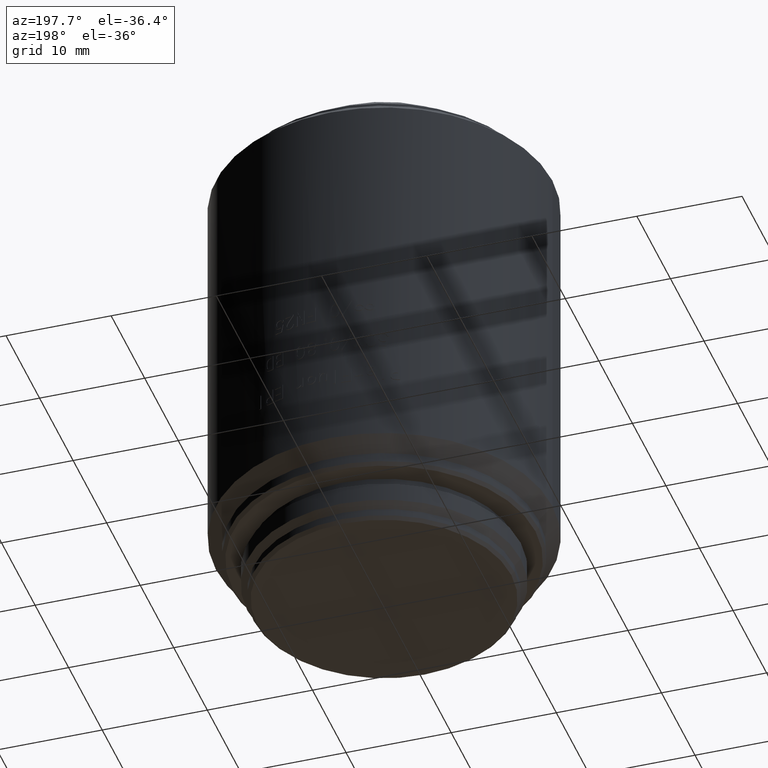
[diagram: clean part render]
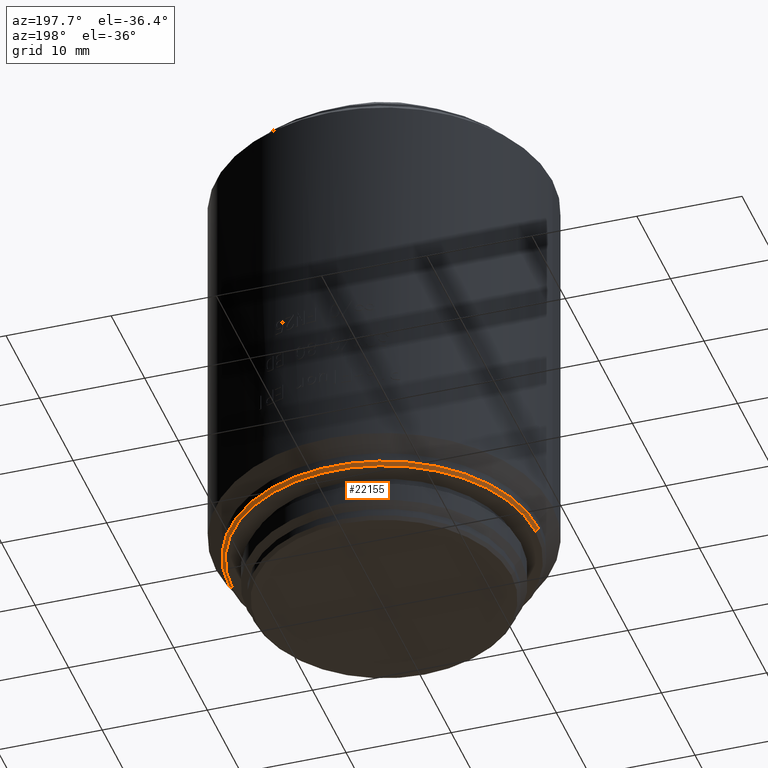
[diagram: same view with one face highlighted and labeled with its STEP entity id]
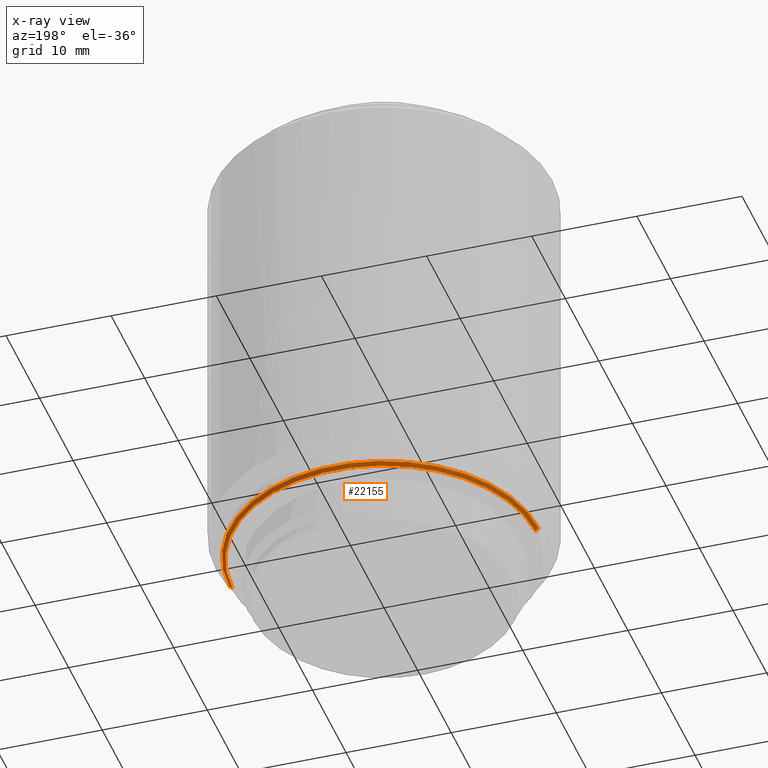
[diagram: x-ray of the same camera — body ghosted, the highlighted face saturated]
A machine part, auxiliary view. The second image highlights one B-rep face of the part: STEP entity #22155.
The next image is the same camera in x-ray: the body ghosted, the highlighted face saturated — about 0% of this face is hidden behind the body in this view.
In plain terms, the highlighted conical surface has half-angle 45 deg.
Its self-contained STEP definition (entity closure, byte-faithful):
#453 = DIRECTION ( 'NONE',  ( 0.000000000000000000, 0.000000000000000000, 1.000000000000000000 ) ) ;
#479 = CARTESIAN_POINT ( 'NONE',  ( 0.000000000000000000, 0.000000000000000000, 4.400000000000000355 ) ) ;
#1466 = CIRCLE ( 'NONE', #4204, 14.40000000000000036 ) ;
#1725 = CIRCLE ( 'NONE', #26653, 14.69999999999999929 ) ;
#2243 = CONICAL_SURFACE ( 'NONE', #10325, 14.40000000000000036, 0.7853981633974419507 ) ;
#2599 = FACE_OUTER_BOUND ( 'NONE', #27714, .T. ) ;
#3812 = EDGE_CURVE ( 'NONE', #18842, #14139, #1725, .T. ) ;
#3860 = LINE ( 'NONE', #22797, #23309 ) ;
#4204 = AXIS2_PLACEMENT_3D ( 'NONE', #12704, #22814, #21269 ) ;
#4853 = DIRECTION ( 'NONE',  ( 1.000000000000000000, 0.000000000000000000, 0.000000000000000000 ) ) ;
#7081 = ORIENTED_EDGE ( 'NONE', *, *, #25291, .F. ) ;
#8412 = LINE ( 'NONE', #23158, #27239 ) ;
#8753 = DIRECTION ( 'NONE',  ( -1.000000000000000000, 0.000000000000000000, 0.000000000000000000 ) ) ;
#9053 = DIRECTION ( 'NONE',  ( 0.000000000000000000, 0.000000000000000000, 1.000000000000000000 ) ) ;
#9365 = ORIENTED_EDGE ( 'NONE', *, *, #10831, .F. ) ;
#9369 = VERTEX_POINT ( 'NONE', #17310 ) ;
#10198 = CARTESIAN_POINT ( 'NONE',  ( 14.69999999999999574, 0.000000000000000000, 4.700000000000000178 ) ) ;
#10325 = AXIS2_PLACEMENT_3D ( 'NONE', #479, #9053, #4853 ) ;
#10831 = EDGE_CURVE ( 'NONE', #27144, #18842, #8412, .T. ) ;
#11850 = ORIENTED_EDGE ( 'NONE', *, *, #19778, .T. ) ;
#12476 = DIRECTION ( 'NONE',  ( 0.7071067811865431318, 0.000000000000000000, 0.7071067811865520136 ) ) ;
#12704 = CARTESIAN_POINT ( 'NONE',  ( 0.000000000000000000, 0.000000000000000000, 4.400000000000000355 ) ) ;
#14139 = VERTEX_POINT ( 'NONE', #26711 ) ;
#14225 = DIRECTION ( 'NONE',  ( -0.7071067811865431318, 8.659560562354878624E-17, 0.7071067811865520136 ) ) ;
#15346 = CARTESIAN_POINT ( 'NONE',  ( 0.000000000000000000, 0.000000000000000000, 4.700000000000000178 ) ) ;
#17310 = CARTESIAN_POINT ( 'NONE',  ( -14.40000000000000036, 1.781861092759398693E-15, 4.400000000000000355 ) ) ;
#18842 = VERTEX_POINT ( 'NONE', #10198 ) ;
#19778 = EDGE_CURVE ( 'NONE', #9369, #14139, #3860, .T. ) ;
#21269 = DIRECTION ( 'NONE',  ( -1.000000000000000000, 0.000000000000000000, 0.000000000000000000 ) ) ;
#22155 = ADVANCED_FACE ( 'NONE', ( #2599 ), #2243, .T. ) ;
#22797 = CARTESIAN_POINT ( 'NONE',  ( -14.40000000000000036, 1.763491390772188461E-15, 4.400000000000000355 ) ) ;
#22814 = DIRECTION ( 'NONE',  ( 0.000000000000000000, 0.000000000000000000, -1.000000000000000000 ) ) ;
#23153 = CARTESIAN_POINT ( 'NONE',  ( 14.40000000000000036, 0.000000000000000000, 4.400000000000000355 ) ) ;
#23158 = CARTESIAN_POINT ( 'NONE',  ( 14.40000000000000036, 0.000000000000000000, 4.400000000000000355 ) ) ;
#23309 = VECTOR ( 'NONE', #14225, 999.9999999999998863 ) ;
#25291 = EDGE_CURVE ( 'NONE', #9369, #27144, #1466, .T. ) ;
#26653 = AXIS2_PLACEMENT_3D ( 'NONE', #15346, #453, #8753 ) ;
#26711 = CARTESIAN_POINT ( 'NONE',  ( -14.69999999999999574, 1.800230794746608729E-15, 4.700000000000000178 ) ) ;
#27144 = VERTEX_POINT ( 'NONE', #23153 ) ;
#27239 = VECTOR ( 'NONE', #12476, 999.9999999999998863 ) ;
#27707 = ORIENTED_EDGE ( 'NONE', *, *, #3812, .F. ) ;
#27714 = EDGE_LOOP ( 'NONE', ( #7081, #11850, #27707, #9365 ) ) ;